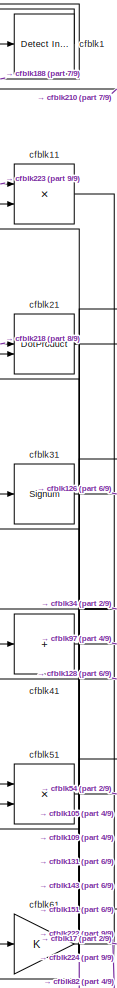
[diagram: root canvas - part 1/9, top left region]
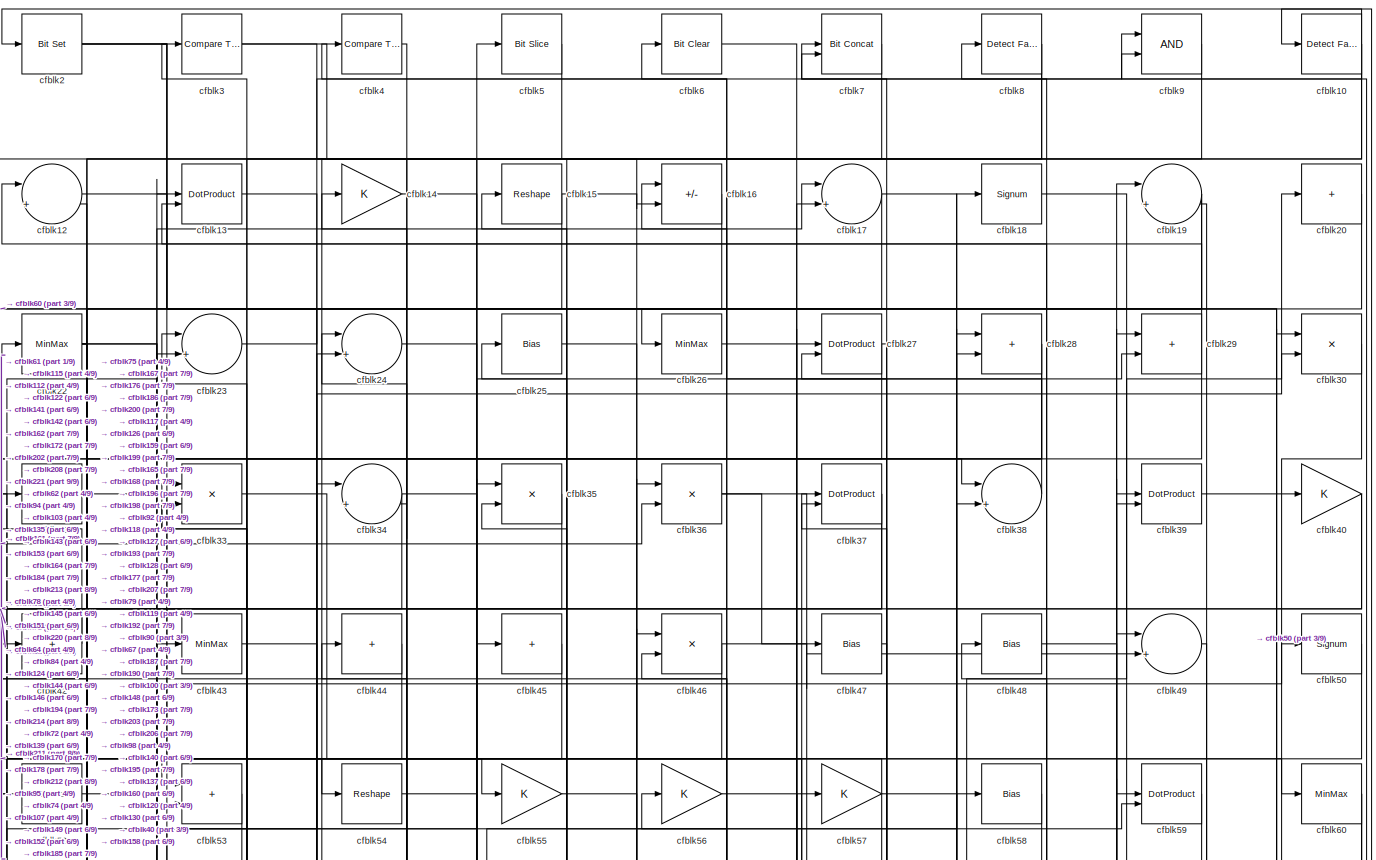
[diagram: root canvas - part 2/9, full width, top band]
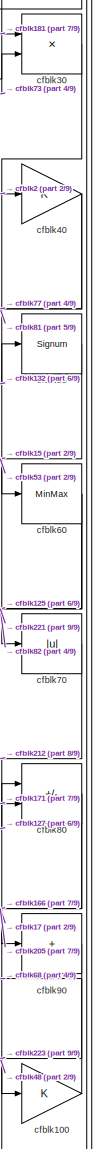
[diagram: root canvas - part 3/9, top right region]
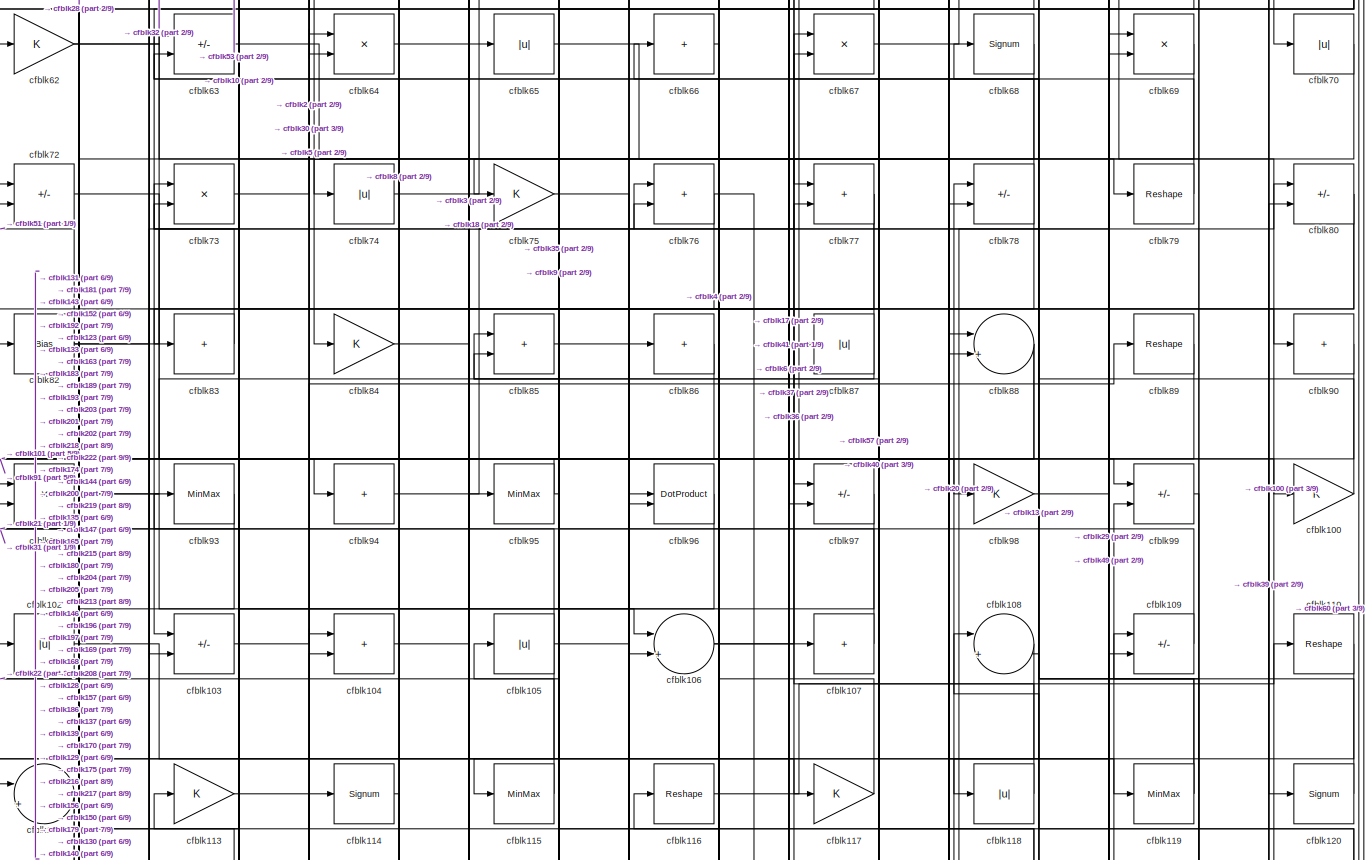
[diagram: root canvas - part 4/9, full width, middle band]
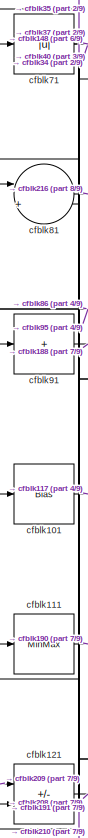
[diagram: root canvas - part 5/9, middle left region]
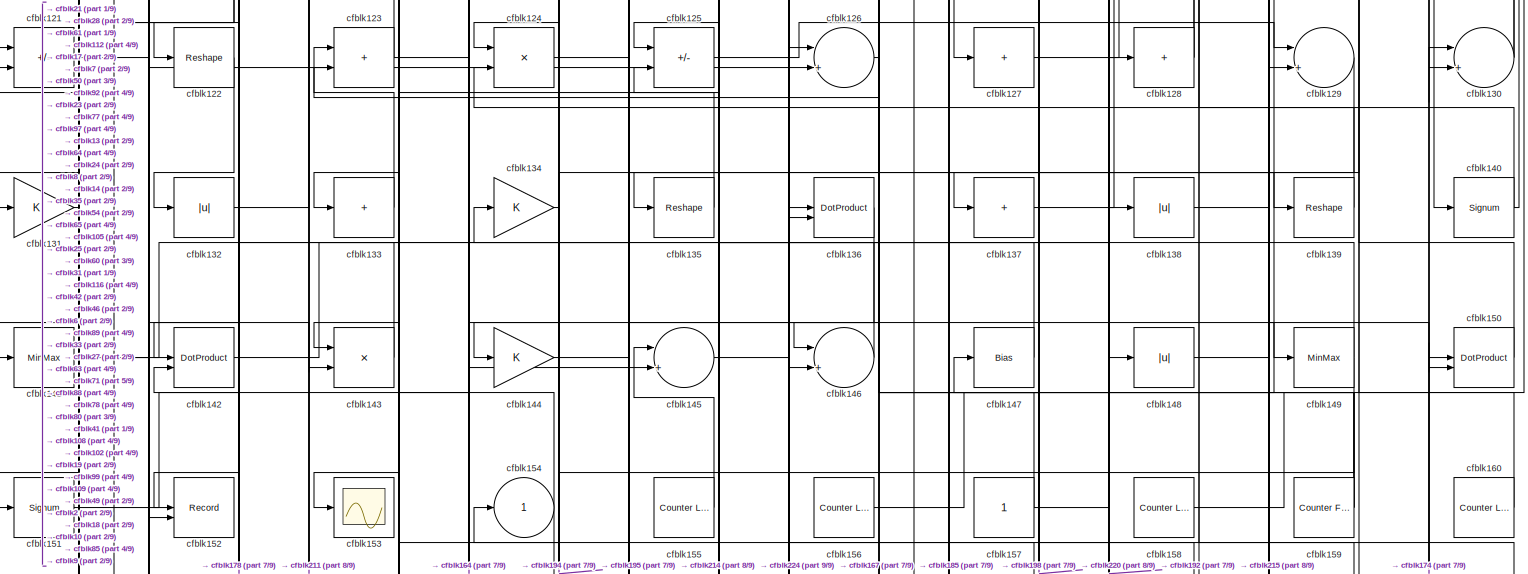
[diagram: root canvas - part 6/9, full width, middle band]
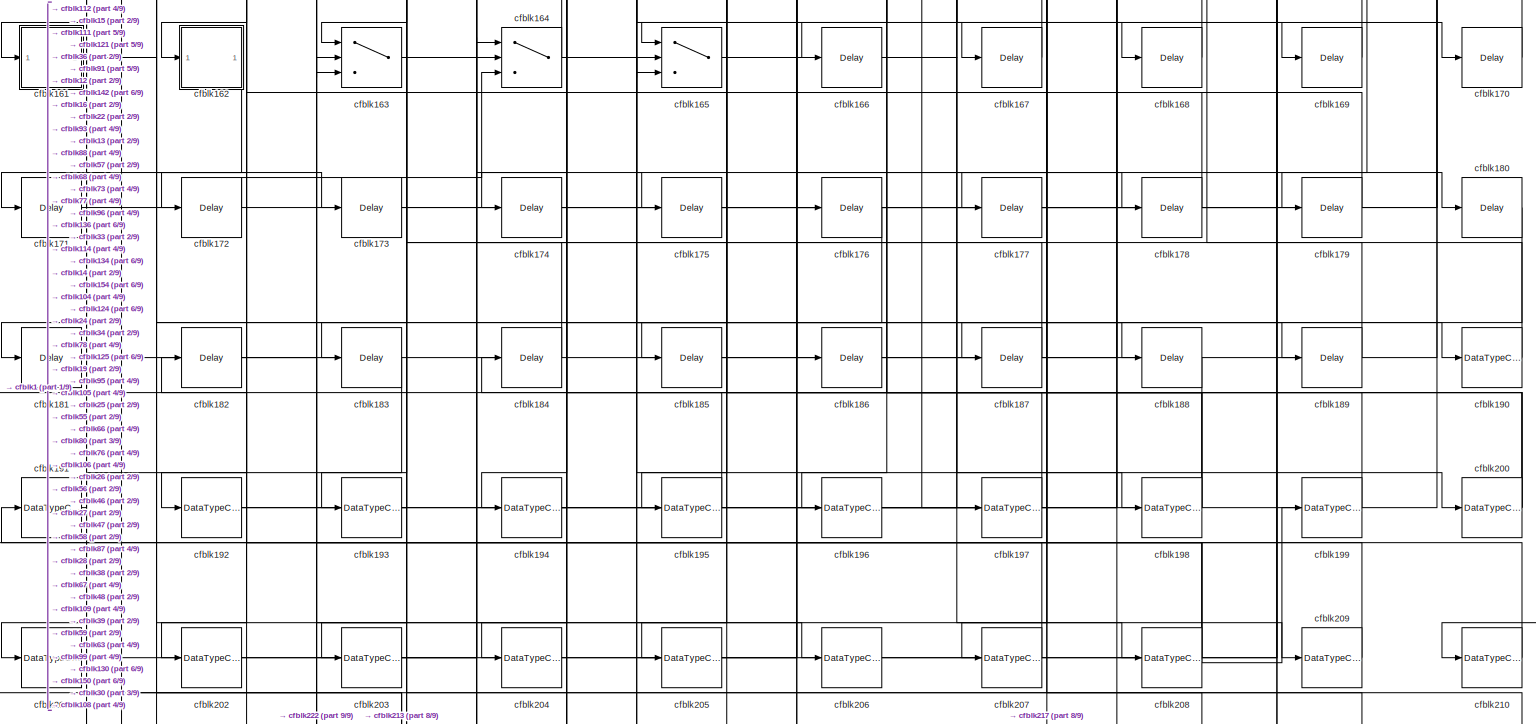
[diagram: root canvas - part 7/9, full width, bottom band]
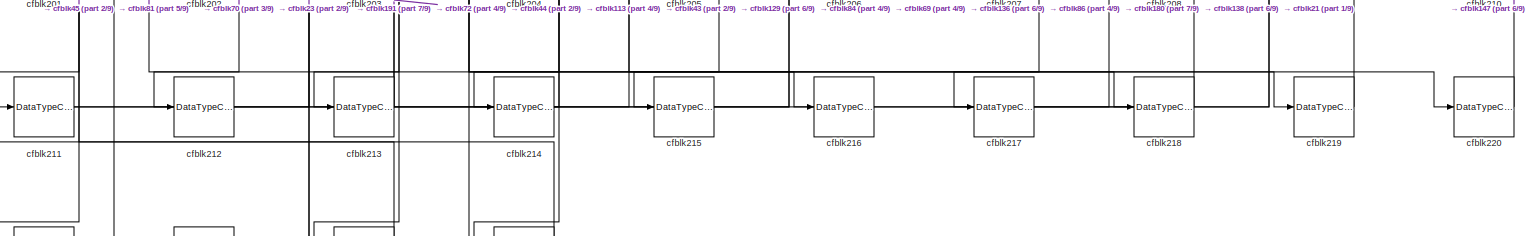
[diagram: root canvas - part 8/9, full width, bottom band]
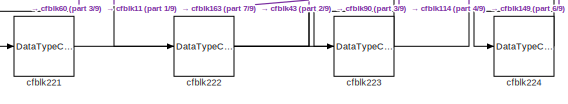
[diagram: root canvas - part 9/9, bottom left region]
MODEL slx_41062d90a717
KIND model
CONFIG AbsTol = auto
CONFIG EnableMultiTasking = off
CONFIG FixedStep = auto
CONFIG MaxStep = auto
CONFIG MinStep = auto
CONFIG RelTol = 1e-3
CONFIG SampleTimeConstraint = Unconstrained
CONFIG SolverName = VariableStepAuto
CONFIG StartTime = 0.0
CONFIG StopTime = 10.0
BLOCK [Reference] cfblk1  REF=simulink/Logic and Bit
Operations/Detect
Increase
  LibrarySourceBlock = hdlsllib/Logic and Bit\nOperations/Detect\nIncrease
  SourceBlock = simulink/Logic and Bit\nOperations/Detect\nIncrease
  SourceType = Detect Increase
BLOCK [Reference] cfblk10  REF=hdlsllib/Logic and Bit
Operations/Detect Fall
Nonpositive
  SourceBlock = hdlsllib/Logic and Bit\nOperations/Detect Fall\nNonpositive
  SourceType = Detect Fall Nonpositive
BLOCK [Gain] cfblk100
BLOCK [Bias] cfblk101
  Bias = 0.0
  SaturateOnIntegerOverflow = off
BLOCK [Abs] cfblk102
  SaturateOnIntegerOverflow = off
BLOCK [Sum] cfblk103
  IconShape = rectangular
  Inputs = +-
BLOCK [Sum] cfblk104
  IconShape = rectangular
BLOCK [Abs] cfblk105
  SaturateOnIntegerOverflow = off
BLOCK [Sum] cfblk106
  Inputs = |++
BLOCK [Sum] cfblk107
  IconShape = rectangular
  Inputs = +
BLOCK [Sum] cfblk108
  Inputs = |++
BLOCK [Sum] cfblk109
  IconShape = rectangular
  Inputs = +-
BLOCK [Product] cfblk11
  Inputs = */
  RndMeth = Zero
  SaturateOnIntegerOverflow = on
BLOCK [Reshape] cfblk110
BLOCK [MinMax] cfblk111
BLOCK [Sum] cfblk112
  Inputs = |++
BLOCK [Gain] cfblk113
BLOCK [Signum] cfblk114
BLOCK [MinMax] cfblk115
BLOCK [Reshape] cfblk116
BLOCK [Gain] cfblk117
BLOCK [Abs] cfblk118
  SaturateOnIntegerOverflow = off
BLOCK [MinMax] cfblk119
BLOCK [Sum] cfblk12
  Inputs = |++
BLOCK [Signum] cfblk120
BLOCK [Sum] cfblk121
  IconShape = rectangular
  Inputs = +-
BLOCK [Reshape] cfblk122
BLOCK [Sum] cfblk123
  IconShape = rectangular
BLOCK [Product] cfblk124
  Inputs = */
  RndMeth = Zero
  SaturateOnIntegerOverflow = on
BLOCK [Sum] cfblk125
  IconShape = rectangular
  Inputs = +-
BLOCK [Sum] cfblk126
  Inputs = |++
BLOCK [Sum] cfblk127
  IconShape = rectangular
  Inputs = +
BLOCK [Sum] cfblk128
  IconShape = rectangular
  Inputs = +
BLOCK [Sum] cfblk129
  Inputs = |++
BLOCK [DotProduct] cfblk13
  OutDataTypeStr = Inherit: Inherit via internal rule
BLOCK [Sum] cfblk130
  Inputs = |++
BLOCK [Gain] cfblk131
BLOCK [Abs] cfblk132
  SaturateOnIntegerOverflow = off
BLOCK [Sum] cfblk133
  IconShape = rectangular
  Inputs = +
BLOCK [Gain] cfblk134
BLOCK [Reshape] cfblk135
BLOCK [DotProduct] cfblk136
  OutDataTypeStr = Inherit: Inherit via internal rule
BLOCK [Sum] cfblk137
  IconShape = rectangular
  Inputs = +
BLOCK [Abs] cfblk138
  SaturateOnIntegerOverflow = off
BLOCK [Reshape] cfblk139
BLOCK [Gain] cfblk14
BLOCK [Signum] cfblk140
BLOCK [MinMax] cfblk141
BLOCK [DotProduct] cfblk142
  OutDataTypeStr = Inherit: Inherit via internal rule
BLOCK [Product] cfblk143
  Inputs = */
  RndMeth = Zero
  SaturateOnIntegerOverflow = on
BLOCK [Gain] cfblk144
BLOCK [Sum] cfblk145
  Inputs = |++
BLOCK [Sum] cfblk146
  Inputs = |++
BLOCK [Bias] cfblk147
  Bias = 0.0
  SaturateOnIntegerOverflow = off
BLOCK [Abs] cfblk148
  SaturateOnIntegerOverflow = off
BLOCK [MinMax] cfblk149
BLOCK [Reshape] cfblk15
BLOCK [DotProduct] cfblk150
  OutDataTypeStr = Inherit: Inherit via internal rule
BLOCK [Signum] cfblk151
BLOCK [Record] cfblk152
  CompatibilityTag = XY
  FileSettingsInternal = {"entries":[{"content":{"excelSettings":{"content":{},"type":"Streamout.ExcelSettings"}},"type":"Streamout.FileSettingStorage","uuid":""}],"packageUris":["http:\/\/schema.mathworks.com\/mf0\/streamout_blocks\/R2020a"],"version":"1.0"}
  Layout = [1 1]
  SignalsInternal = {"entries":[{"content":{"signals":[{"content":{"blockPath":[],"dimensions":[1],"domain":"","lineColor":"#a2142f","plots":[1],"port":1,"signalID":3551,"signalName":"XY Graph:1"},"type":"RecordBlkView.Signal","uuid":""},{"content":{"blockPath":[],"dimensions":[1],"domain":"","lineColor":"#139fff","plots":[1],"port":2,"signalID":3554,"signalName":"XY Graph:2"},"type":"RecordBlkView.Signal","uuid":""}...<+146ch>
  VisualizationBindings = {"xyplotplugin":{"info":[{"series":[{"bindingParametersList":[{"parameter":"X-Axis","signalID":3551,"signalName":"XY Graph:1"},{"parameter":"Y-Axis","signalID":3554,"signalName":"XY Graph:2"}],"seriesID":5096}],"subplotID":1}]}}
  st = -1
BLOCK [Scope] cfblk153
  Floating = off
  NumInputPorts = 1
  ScopeSpecificationString = Simulink.scopes.TimeScopeBlockCfg('CurrentConfiguration', extmgr.ConfigurationSet(extmgr.Configuration('Core','General UI',true),extmgr.Configuration('Core','Source UI',true),extmgr.Configuration('Sources','WiredSimulink',true,'DataLoggingVariableName','ScopeData2','DataLoggingSaveFormat','Array','DataLoggingLimitDataPoints',true,'DataLoggingDecimation','1'),extmgr.Configuration('Visuals','Time Do...<+868ch>
BLOCK [Outport] cfblk154
  VectorParamsAs1DForOutWhenUnconnected = off
BLOCK [Reference] cfblk155  REF=hdlsllib/Sources/Counter
Limited
  SourceBlock = hdlsllib/Sources/Counter\nLimited
  SourceType = Counter Limited
BLOCK [Reference] cfblk156  REF=hdlsllib/Sources/Counter
Limited
  SourceBlock = hdlsllib/Sources/Counter\nLimited
  SourceType = Counter Limited
BLOCK [Constant] cfblk157
  SampleTime = -1
BLOCK [Reference] cfblk158  REF=hdlsllib/Sources/Counter
Limited
  SourceBlock = hdlsllib/Sources/Counter\nLimited
  SourceType = Counter Limited
BLOCK [Reference] cfblk159  REF=hdlsllib/Sources/Counter
Free-Running
  SourceBlock = hdlsllib/Sources/Counter\nFree-Running
  SourceType = Counter Free-Running
BLOCK [Sum] cfblk16
  IconShape = rectangular
  Inputs = +-
BLOCK [Reference] cfblk160  REF=hdlsllib/Sources/Counter
Limited
  SourceBlock = hdlsllib/Sources/Counter\nLimited
  SourceType = Counter Limited
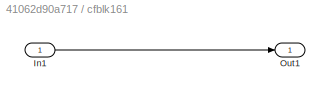
BLOCK [SubSystem] cfblk161
  LibrarySourceBlock = hdlsllib/Ports &\nSubsystems/Subsystem
BLOCK [Inport] cfblk161/In1
BLOCK [Outport] cfblk161/Out1
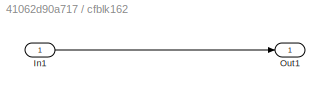
BLOCK [SubSystem] cfblk162
  LibrarySourceBlock = hdlsllib/Ports &\nSubsystems/Subsystem
BLOCK [Inport] cfblk162/In1
BLOCK [Outport] cfblk162/Out1
BLOCK [Switch] cfblk163
  InputSameDT = off
  SaturateOnIntegerOverflow = off
BLOCK [Switch] cfblk164
  InputSameDT = off
  SaturateOnIntegerOverflow = off
BLOCK [Switch] cfblk165
  InputSameDT = off
  SaturateOnIntegerOverflow = off
BLOCK [Delay] cfblk166
  InputPortMap = u0
  SampleTime = 1
BLOCK [Delay] cfblk167
  InputPortMap = u0
  SampleTime = 1
BLOCK [Delay] cfblk168
  InputPortMap = u0
  SampleTime = 1
BLOCK [Delay] cfblk169
  InputPortMap = u0
  SampleTime = 1
BLOCK [Sum] cfblk17
  Inputs = |++
BLOCK [Delay] cfblk170
  InputPortMap = u0
  SampleTime = 1
BLOCK [Delay] cfblk171
  InputPortMap = u0
  SampleTime = 1
BLOCK [Delay] cfblk172
  InputPortMap = u0
  SampleTime = 1
BLOCK [Delay] cfblk173
  InputPortMap = u0
  SampleTime = 1
BLOCK [Delay] cfblk174
  InputPortMap = u0
  SampleTime = 1
BLOCK [Delay] cfblk175
  InputPortMap = u0
  SampleTime = 1
BLOCK [Delay] cfblk176
  InputPortMap = u0
  SampleTime = 1
BLOCK [Delay] cfblk177
  InputPortMap = u0
  SampleTime = 1
BLOCK [Delay] cfblk178
  InputPortMap = u0
  SampleTime = 1
BLOCK [Delay] cfblk179
  InputPortMap = u0
  SampleTime = 1
BLOCK [Signum] cfblk18
BLOCK [Delay] cfblk180
  InputPortMap = u0
  SampleTime = 1
BLOCK [Delay] cfblk181
  InputPortMap = u0
  SampleTime = 1
BLOCK [Delay] cfblk182
  InputPortMap = u0
  SampleTime = 1
BLOCK [Delay] cfblk183
  InputPortMap = u0
  SampleTime = 1
BLOCK [Delay] cfblk184
  InputPortMap = u0
  SampleTime = 1
BLOCK [Delay] cfblk185
  InputPortMap = u0
  SampleTime = 1
BLOCK [Delay] cfblk186
  InputPortMap = u0
  SampleTime = 1
BLOCK [Delay] cfblk187
  InputPortMap = u0
  SampleTime = 1
BLOCK [Delay] cfblk188
  InputPortMap = u0
  SampleTime = 1
BLOCK [Delay] cfblk189
  InputPortMap = u0
  SampleTime = 1
BLOCK [Sum] cfblk19
  Inputs = |++
BLOCK [DataTypeConversion] cfblk190
  OutDataTypeStr = uint8
  RndMeth = Floor
  SaturateOnIntegerOverflow = off
BLOCK [DataTypeConversion] cfblk191
  OutDataTypeStr = uint8
  RndMeth = Floor
  SaturateOnIntegerOverflow = off
BLOCK [DataTypeConversion] cfblk192
  RndMeth = Floor
  SaturateOnIntegerOverflow = off
BLOCK [DataTypeConversion] cfblk193
  OutDataTypeStr = uint8
  RndMeth = Floor
  SaturateOnIntegerOverflow = off
BLOCK [DataTypeConversion] cfblk194
  RndMeth = Floor
  SaturateOnIntegerOverflow = off
BLOCK [DataTypeConversion] cfblk195
  OutDataTypeStr = uint8
  RndMeth = Floor
  SaturateOnIntegerOverflow = off
BLOCK [DataTypeConversion] cfblk196
  OutDataTypeStr = uint8
  RndMeth = Floor
  SaturateOnIntegerOverflow = off
BLOCK [DataTypeConversion] cfblk197
  OutDataTypeStr = uint8
  RndMeth = Floor
  SaturateOnIntegerOverflow = off
BLOCK [DataTypeConversion] cfblk198
  RndMeth = Floor
  SaturateOnIntegerOverflow = off
BLOCK [DataTypeConversion] cfblk199
  OutDataTypeStr = uint8
  RndMeth = Floor
  SaturateOnIntegerOverflow = off
BLOCK [Reference] cfblk2  REF=simulink/Logic and Bit
Operations/Bit Set
  LibrarySourceBlock = hdlsllib/Logic and Bit\nOperations/Bit Set
  SourceBlock = simulink/Logic and Bit\nOperations/Bit Set
  SourceType = Bit Set
BLOCK [Sum] cfblk20
  IconShape = rectangular
  Inputs = +
BLOCK [DataTypeConversion] cfblk200
  RndMeth = Floor
  SaturateOnIntegerOverflow = off
BLOCK [DataTypeConversion] cfblk201
  OutDataTypeStr = uint8
  RndMeth = Floor
  SaturateOnIntegerOverflow = off
BLOCK [DataTypeConversion] cfblk202
  OutDataTypeStr = uint8
  RndMeth = Floor
  SaturateOnIntegerOverflow = off
BLOCK [DataTypeConversion] cfblk203
  OutDataTypeStr = uint8
  RndMeth = Floor
  SaturateOnIntegerOverflow = off
BLOCK [DataTypeConversion] cfblk204
  OutDataTypeStr = uint8
  RndMeth = Floor
  SaturateOnIntegerOverflow = off
BLOCK [DataTypeConversion] cfblk205
  OutDataTypeStr = uint8
  RndMeth = Floor
  SaturateOnIntegerOverflow = off
BLOCK [DataTypeConversion] cfblk206
  OutDataTypeStr = uint8
  RndMeth = Floor
  SaturateOnIntegerOverflow = off
BLOCK [DataTypeConversion] cfblk207
  OutDataTypeStr = uint8
  RndMeth = Floor
  SaturateOnIntegerOverflow = off
BLOCK [DataTypeConversion] cfblk208
  RndMeth = Floor
  SaturateOnIntegerOverflow = off
BLOCK [DataTypeConversion] cfblk209
  OutDataTypeStr = uint8
  RndMeth = Floor
  SaturateOnIntegerOverflow = off
BLOCK [DotProduct] cfblk21
  OutDataTypeStr = Inherit: Inherit via internal rule
BLOCK [DataTypeConversion] cfblk210
  OutDataTypeStr = uint8
  RndMeth = Floor
  SaturateOnIntegerOverflow = off
BLOCK [DataTypeConversion] cfblk211
  RndMeth = Floor
  SaturateOnIntegerOverflow = off
BLOCK [DataTypeConversion] cfblk212
  OutDataTypeStr = uint8
  RndMeth = Floor
  SaturateOnIntegerOverflow = off
BLOCK [DataTypeConversion] cfblk213
  RndMeth = Floor
  SaturateOnIntegerOverflow = off
BLOCK [DataTypeConversion] cfblk214
  OutDataTypeStr = uint8
  RndMeth = Floor
  SaturateOnIntegerOverflow = off
BLOCK [DataTypeConversion] cfblk215
  OutDataTypeStr = uint8
  RndMeth = Floor
  SaturateOnIntegerOverflow = off
BLOCK [DataTypeConversion] cfblk216
  OutDataTypeStr = uint8
  RndMeth = Floor
  SaturateOnIntegerOverflow = off
BLOCK [DataTypeConversion] cfblk217
  OutDataTypeStr = uint8
  RndMeth = Floor
  SaturateOnIntegerOverflow = off
BLOCK [DataTypeConversion] cfblk218
  OutDataTypeStr = uint8
  RndMeth = Floor
  SaturateOnIntegerOverflow = off
BLOCK [DataTypeConversion] cfblk219
  OutDataTypeStr = uint8
  RndMeth = Floor
  SaturateOnIntegerOverflow = off
BLOCK [MinMax] cfblk22
BLOCK [DataTypeConversion] cfblk220
  OutDataTypeStr = uint8
  RndMeth = Floor
  SaturateOnIntegerOverflow = off
BLOCK [DataTypeConversion] cfblk221
  OutDataTypeStr = uint8
  RndMeth = Floor
  SaturateOnIntegerOverflow = off
BLOCK [DataTypeConversion] cfblk222
  RndMeth = Floor
  SaturateOnIntegerOverflow = off
BLOCK [DataTypeConversion] cfblk223
  OutDataTypeStr = uint8
  RndMeth = Floor
  SaturateOnIntegerOverflow = off
BLOCK [DataTypeConversion] cfblk224
  OutDataTypeStr = uint8
  RndMeth = Floor
  SaturateOnIntegerOverflow = off
BLOCK [Sum] cfblk23
  Inputs = |++
BLOCK [Sum] cfblk24
  Inputs = |++
BLOCK [Bias] cfblk25
  Bias = 0.0
  SaturateOnIntegerOverflow = off
BLOCK [MinMax] cfblk26
BLOCK [DotProduct] cfblk27
  OutDataTypeStr = Inherit: Inherit via internal rule
BLOCK [Sum] cfblk28
  IconShape = rectangular
BLOCK [Sum] cfblk29
  IconShape = rectangular
BLOCK [Reference] cfblk3  REF=hdlsllib/Logic and Bit
Operations/Compare
To Constant
  SourceBlock = hdlsllib/Logic and Bit\nOperations/Compare\nTo Constant
  SourceType = Compare To Constant
BLOCK [Product] cfblk30
  Inputs = */
  RndMeth = Zero
  SaturateOnIntegerOverflow = on
BLOCK [Signum] cfblk31
BLOCK [Reshape] cfblk32
BLOCK [Product] cfblk33
  Inputs = */
  RndMeth = Zero
  SaturateOnIntegerOverflow = on
BLOCK [Sum] cfblk34
  Inputs = |++
BLOCK [Product] cfblk35
  Inputs = */
  RndMeth = Zero
  SaturateOnIntegerOverflow = on
BLOCK [Product] cfblk36
  Inputs = */
  RndMeth = Zero
  SaturateOnIntegerOverflow = on
BLOCK [DotProduct] cfblk37
  OutDataTypeStr = Inherit: Inherit via internal rule
BLOCK [Sum] cfblk38
  Inputs = |++
BLOCK [DotProduct] cfblk39
  OutDataTypeStr = Inherit: Inherit via internal rule
BLOCK [Reference] cfblk4  REF=hdlsllib/Logic and Bit
Operations/Compare
To Constant
  SourceBlock = hdlsllib/Logic and Bit\nOperations/Compare\nTo Constant
  SourceType = Compare To Constant
BLOCK [Gain] cfblk40
BLOCK [Sum] cfblk41
  IconShape = rectangular
  Inputs = +
BLOCK [Sum] cfblk42
  IconShape = rectangular
  Inputs = +
BLOCK [MinMax] cfblk43
BLOCK [Sum] cfblk44
  IconShape = rectangular
  Inputs = +
BLOCK [Sum] cfblk45
  IconShape = rectangular
  Inputs = +
BLOCK [Product] cfblk46
  Inputs = */
  RndMeth = Zero
  SaturateOnIntegerOverflow = on
BLOCK [Bias] cfblk47
  Bias = 0.0
  SaturateOnIntegerOverflow = off
BLOCK [Bias] cfblk48
  Bias = 0.0
  SaturateOnIntegerOverflow = off
BLOCK [Sum] cfblk49
  Inputs = |++
BLOCK [Reference] cfblk5  REF=hdlsllib/Logic and Bit
Operations/Bit Slice
  SourceBlock = hdlsllib/Logic and Bit\nOperations/Bit Slice
  SourceType = Bit Slice
BLOCK [Signum] cfblk50
BLOCK [Product] cfblk51
  Inputs = */
  RndMeth = Zero
  SaturateOnIntegerOverflow = on
BLOCK [MinMax] cfblk52
BLOCK [Sum] cfblk53
  IconShape = rectangular
BLOCK [Reshape] cfblk54
BLOCK [Gain] cfblk55
BLOCK [Gain] cfblk56
BLOCK [Gain] cfblk57
BLOCK [Bias] cfblk58
  Bias = 0.0
  SaturateOnIntegerOverflow = off
BLOCK [DotProduct] cfblk59
  OutDataTypeStr = Inherit: Inherit via internal rule
BLOCK [Reference] cfblk6  REF=simulink/Logic and Bit
Operations/Bit Clear
  LibrarySourceBlock = hdlsllib/Logic and Bit\nOperations/Bit Clear
  SourceBlock = simulink/Logic and Bit\nOperations/Bit Clear
  SourceType = Bit Clear
BLOCK [MinMax] cfblk60
BLOCK [Gain] cfblk61
BLOCK [Gain] cfblk62
BLOCK [Sum] cfblk63
  IconShape = rectangular
  Inputs = +-
BLOCK [Product] cfblk64
  Inputs = */
  RndMeth = Zero
  SaturateOnIntegerOverflow = on
BLOCK [Abs] cfblk65
  SaturateOnIntegerOverflow = off
BLOCK [Sum] cfblk66
  IconShape = rectangular
  Inputs = +
BLOCK [Product] cfblk67
  Inputs = */
  RndMeth = Zero
  SaturateOnIntegerOverflow = on
BLOCK [Signum] cfblk68
BLOCK [Product] cfblk69
  Inputs = */
  RndMeth = Zero
  SaturateOnIntegerOverflow = on
BLOCK [Reference] cfblk7  REF=hdlsllib/Logic and Bit
Operations/Bit Concat
  SourceBlock = hdlsllib/Logic and Bit\nOperations/Bit Concat
  SourceType = Bit Concat
BLOCK [Abs] cfblk70
  SaturateOnIntegerOverflow = off
BLOCK [Abs] cfblk71
  SaturateOnIntegerOverflow = off
BLOCK [Sum] cfblk72
  IconShape = rectangular
  Inputs = +-
BLOCK [Product] cfblk73
  Inputs = */
  RndMeth = Zero
  SaturateOnIntegerOverflow = on
BLOCK [Abs] cfblk74
  SaturateOnIntegerOverflow = off
BLOCK [Gain] cfblk75
BLOCK [Sum] cfblk76
  IconShape = rectangular
BLOCK [Sum] cfblk77
  IconShape = rectangular
BLOCK [Sum] cfblk78
  IconShape = rectangular
  Inputs = +-
BLOCK [Reshape] cfblk79
BLOCK [Reference] cfblk8  REF=hdlsllib/Logic and Bit
Operations/Detect Fall
Negative
  SourceBlock = hdlsllib/Logic and Bit\nOperations/Detect Fall\nNegative
  SourceType = Detect Fall Negative
BLOCK [Sum] cfblk80
  IconShape = rectangular
  Inputs = +-
BLOCK [Sum] cfblk81
  Inputs = |++
BLOCK [Bias] cfblk82
  Bias = 0.0
  SaturateOnIntegerOverflow = off
BLOCK [Sum] cfblk83
  IconShape = rectangular
  Inputs = +
BLOCK [Gain] cfblk84
BLOCK [Sum] cfblk85
  IconShape = rectangular
BLOCK [Sum] cfblk86
  IconShape = rectangular
  Inputs = +
BLOCK [Abs] cfblk87
  SaturateOnIntegerOverflow = off
BLOCK [Sum] cfblk88
  Inputs = |++
BLOCK [Reshape] cfblk89
BLOCK [Logic] cfblk9
  AllPortsSameDT = off
  OutDataTypeStr = boolean
BLOCK [Sum] cfblk90
  IconShape = rectangular
  Inputs = +
BLOCK [Sum] cfblk91
  IconShape = rectangular
  Inputs = +
BLOCK [Product] cfblk92
  Inputs = */
  RndMeth = Zero
  SaturateOnIntegerOverflow = on
BLOCK [MinMax] cfblk93
BLOCK [Sum] cfblk94
  IconShape = rectangular
  Inputs = +
BLOCK [MinMax] cfblk95
BLOCK [DotProduct] cfblk96
  OutDataTypeStr = Inherit: Inherit via internal rule
BLOCK [Sum] cfblk97
  IconShape = rectangular
  Inputs = +-
BLOCK [Gain] cfblk98
BLOCK [Sum] cfblk99
  IconShape = rectangular
  Inputs = +-
LINE cfblk100:1 -> cfblk68:1
LINE cfblk101:1 -> cfblk117:1
LINE cfblk102:1 -> cfblk129:2
LINE cfblk103:1 -> cfblk89:1
LINE cfblk104:1 -> cfblk200:1
NET cfblk105:1 -> cfblk112:2, cfblk180:1, cfblk21:2
NET cfblk106:1 -> cfblk169:1, cfblk67:1
LINE cfblk107:1 -> cfblk35:2
LINE cfblk108:1 -> cfblk118:1
LINE cfblk109:1 -> cfblk31:1
NET cfblk10:1 -> cfblk112:1, cfblk153:1, cfblk2:1, cfblk7:2
LINE cfblk110:1 -> cfblk115:1
LINE cfblk111:1 -> cfblk190:1
NET cfblk112:1 -> cfblk131:1, cfblk181:1
LINE cfblk113:1 -> cfblk218:1
LINE cfblk114:1 -> cfblk174:1
LINE cfblk115:1 -> cfblk22:1
LINE cfblk116:1 -> cfblk110:1
LINE cfblk117:1 -> cfblk4:1
LINE cfblk118:1 -> cfblk37:1
NET cfblk119:1 -> cfblk13:2, cfblk76:2
LINE cfblk11:1 -> cfblk222:1
LINE cfblk120:1 -> cfblk63:1
LINE cfblk121:1 -> cfblk208:1
LINE cfblk122:1 -> cfblk132:1
NET cfblk123:1 -> cfblk64:1, cfblk92:2
LINE cfblk124:1 -> cfblk167:1
LINE cfblk125:1 -> cfblk129:1
LINE cfblk126:1 -> cfblk46:2
LINE cfblk127:1 -> cfblk80:1
NET cfblk128:1 -> cfblk41:1, cfblk7:1
LINE cfblk129:1 -> cfblk214:1
LINE cfblk12:1 -> cfblk55:1
NET cfblk130:1 -> cfblk85:1, cfblk8:1
LINE cfblk131:1 -> cfblk61:1
LINE cfblk132:1 -> cfblk50:1
LINE cfblk133:1 -> cfblk123:1
LINE cfblk134:1 -> cfblk194:1
LINE cfblk135:1 -> cfblk23:1
LINE cfblk136:1 -> cfblk164:2
LINE cfblk137:1 -> cfblk78:1
LINE cfblk138:1 -> cfblk150:2
LINE cfblk139:1 -> cfblk108:2
LINE cfblk13:1 -> cfblk145:2
NET cfblk140:1 -> cfblk116:1, cfblk9:1
NET cfblk141:1 -> cfblk126:2, cfblk35:1
LINE cfblk142:1 -> cfblk28:1
LINE cfblk143:1 -> cfblk102:1
LINE cfblk144:1 -> cfblk65:1
LINE cfblk145:1 -> cfblk149:1
LINE cfblk146:1 -> cfblk24:1
LINE cfblk147:1 -> cfblk105:1
LINE cfblk148:1 -> cfblk19:1
NET cfblk149:1 -> cfblk224:1, cfblk25:1
LINE cfblk14:1 -> cfblk139:1
LINE cfblk150:1 -> cfblk109:1
LINE cfblk151:1 -> cfblk24:2
LINE cfblk155:1 -> cfblk145:1
LINE cfblk156:1 -> cfblk99:2
NET cfblk157:1 -> cfblk124:2, cfblk88:1
LINE cfblk158:1 -> cfblk10:1
NET cfblk159:1 -> cfblk123:2, cfblk42:1, cfblk6:1
NET cfblk15:1 -> cfblk161:1, cfblk60:1
LINE cfblk160:1 -> cfblk19:2
LINE cfblk161/In1:1 -> cfblk161/Out1:1
NET cfblk161:1 -> cfblk173:1, cfblk36:2
LINE cfblk162/In1:1 -> cfblk162/Out1:1
LINE cfblk162:1 -> cfblk171:1
LINE cfblk163:1 -> cfblk175:1
NET cfblk164:1 -> cfblk189:1, cfblk33:1
LINE cfblk165:1 -> cfblk57:1
LINE cfblk166:1 -> cfblk209:1
LINE cfblk167:1 -> cfblk46:1
LINE cfblk168:1 -> cfblk67:2
LINE cfblk169:1 -> cfblk63:2
LINE cfblk16:1 -> cfblk172:1
LINE cfblk170:1 -> cfblk108:1
LINE cfblk171:1 -> cfblk80:2
LINE cfblk172:1 -> cfblk164:3
LINE cfblk173:1 -> cfblk59:1
LINE cfblk174:1 -> cfblk150:1
LINE cfblk175:1 -> cfblk109:2
LINE cfblk176:1 -> cfblk204:1
LINE cfblk177:1 -> cfblk28:2
LINE cfblk178:1 -> cfblk142:2
LINE cfblk179:1 -> cfblk165:2
NET cfblk17:1 -> cfblk122:1, cfblk90:1
LINE cfblk180:1 -> cfblk217:1
LINE cfblk181:1 -> cfblk30:1
LINE cfblk182:1 -> cfblk206:1
LINE cfblk183:1 -> cfblk201:1
LINE cfblk184:1 -> cfblk33:2
LINE cfblk185:1 -> cfblk136:2
LINE cfblk186:1 -> cfblk78:2
LINE cfblk187:1 -> cfblk164:1
LINE cfblk188:1 -> cfblk1:1
LINE cfblk189:1 -> cfblk73:2
LINE cfblk18:1 -> cfblk140:1
LINE cfblk190:1 -> cfblk48:1
LINE cfblk191:1 -> cfblk111:1
NET cfblk192:1 -> cfblk130:1, cfblk58:1
LINE cfblk193:1 -> cfblk93:1
NET cfblk194:1 -> cfblk14:1, cfblk38:2
LINE cfblk195:1 -> cfblk134:1
LINE cfblk196:1 -> cfblk27:1
LINE cfblk197:1 -> cfblk66:1
NET cfblk198:1 -> cfblk125:2, cfblk154:1, cfblk27:2
LINE cfblk199:1 -> cfblk56:1
NET cfblk19:1 -> cfblk152:2, cfblk185:1
LINE cfblk1:1 -> cfblk210:1
NET cfblk200:1 -> cfblk15:1, cfblk184:1, cfblk36:1
LINE cfblk201:1 -> cfblk104:1
LINE cfblk202:1 -> cfblk104:2
LINE cfblk203:1 -> cfblk39:2
LINE cfblk204:1 -> cfblk96:1
LINE cfblk205:1 -> cfblk96:2
LINE cfblk206:1 -> cfblk39:1
LINE cfblk207:1 -> cfblk182:1
NET cfblk208:1 -> cfblk12:2, cfblk13:1, cfblk199:1, cfblk87:1
LINE cfblk209:1 -> cfblk121:1
LINE cfblk20:1 -> cfblk26:1
LINE cfblk210:1 -> cfblk121:2
NET cfblk211:1 -> cfblk136:1, cfblk23:2
LINE cfblk212:1 -> cfblk45:1
NET cfblk213:1 -> cfblk191:1, cfblk72:1, cfblk86:1
LINE cfblk214:1 -> cfblk44:1
LINE cfblk215:1 -> cfblk138:1
LINE cfblk216:1 -> cfblk69:1
LINE cfblk217:1 -> cfblk69:2
LINE cfblk218:1 -> cfblk21:1
LINE cfblk219:1 -> cfblk113:1
NET cfblk21:1 -> cfblk143:2, cfblk151:1
LINE cfblk220:1 -> cfblk147:1
LINE cfblk221:1 -> cfblk43:1
NET cfblk222:1 -> cfblk114:1, cfblk163:2
LINE cfblk223:1 -> cfblk11:1
LINE cfblk224:1 -> cfblk11:2
NET cfblk22:1 -> cfblk162:1, cfblk202:1, cfblk38:1, cfblk53:2
LINE cfblk23:1 -> cfblk9:2
LINE cfblk24:1 -> cfblk170:1
LINE cfblk25:1 -> cfblk186:1
LINE cfblk26:1 -> cfblk168:1
NET cfblk27:1 -> cfblk143:1, cfblk207:1
NET cfblk28:1 -> cfblk141:1, cfblk62:1
NET cfblk29:1 -> cfblk12:1, cfblk92:1
NET cfblk2:1 -> cfblk130:2, cfblk40:1, cfblk64:2
LINE cfblk30:1 -> cfblk70:1
LINE cfblk31:1 -> cfblk126:1
LINE cfblk32:1 -> cfblk94:1
LINE cfblk33:1 -> cfblk127:1
NET cfblk34:1 -> cfblk178:1, cfblk51:1
LINE cfblk35:1 -> cfblk81:1
NET cfblk36:1 -> cfblk47:1, cfblk98:1
NET cfblk37:1 -> cfblk71:1, cfblk74:1
LINE cfblk38:1 -> cfblk16:1
LINE cfblk39:1 -> cfblk120:1
NET cfblk3:1 -> cfblk16:2, cfblk95:1
NET cfblk40:1 -> cfblk77:1, cfblk81:2
LINE cfblk41:1 -> cfblk97:2
LINE cfblk42:1 -> cfblk32:1
LINE cfblk43:1 -> cfblk220:1
LINE cfblk44:1 -> cfblk213:1
LINE cfblk45:1 -> cfblk211:1
NET cfblk46:1 -> cfblk124:1, cfblk49:2
LINE cfblk47:1 -> cfblk177:1
LINE cfblk48:1 -> cfblk100:1
LINE cfblk49:1 -> cfblk137:1
LINE cfblk4:1 -> cfblk34:2
LINE cfblk50:1 -> cfblk53:1
LINE cfblk51:1 -> cfblk54:1
LINE cfblk52:1 -> cfblk59:2
LINE cfblk53:1 -> cfblk103:1
LINE cfblk54:1 -> cfblk146:2
LINE cfblk55:1 -> cfblk176:1
LINE cfblk56:1 -> cfblk198:1
NET cfblk57:1 -> cfblk119:1, cfblk193:1, cfblk52:1
LINE cfblk58:1 -> cfblk187:1
LINE cfblk59:1 -> cfblk195:1
LINE cfblk5:1 -> cfblk84:1
NET cfblk60:1 -> cfblk125:1, cfblk221:1, cfblk82:1
LINE cfblk61:1 -> cfblk17:1
NET cfblk62:1 -> cfblk5:1, cfblk88:2
LINE cfblk63:1 -> cfblk128:1
LINE cfblk64:1 -> cfblk29:2
LINE cfblk65:1 -> cfblk79:1
LINE cfblk66:1 -> cfblk196:1
LINE cfblk67:1 -> cfblk20:1
LINE cfblk68:1 -> cfblk163:1
LINE cfblk69:1 -> cfblk215:1
LINE cfblk6:1 -> cfblk107:1
LINE cfblk70:1 -> cfblk212:1
NET cfblk71:1 -> cfblk148:1, cfblk34:1
LINE cfblk72:1 -> cfblk99:1
LINE cfblk73:1 -> cfblk30:2
LINE cfblk74:1 -> cfblk18:1
LINE cfblk75:1 -> cfblk106:2
NET cfblk76:1 -> cfblk103:2, cfblk197:1
NET cfblk77:1 -> cfblk152:1, cfblk183:1
NET cfblk78:1 -> cfblk165:3, cfblk3:1
LINE cfblk79:1 -> cfblk37:2
LINE cfblk7:1 -> cfblk142:1
NET cfblk80:1 -> cfblk166:1, cfblk205:1
LINE cfblk81:1 -> cfblk216:1
NET cfblk82:1 -> cfblk51:2, cfblk76:1, cfblk77:2
LINE cfblk83:1 -> cfblk73:1
LINE cfblk84:1 -> cfblk219:1
LINE cfblk85:1 -> cfblk97:1
LINE cfblk86:1 -> cfblk101:1
NET cfblk87:1 -> cfblk83:1, cfblk85:2
NET cfblk88:1 -> cfblk135:1, cfblk163:3
LINE cfblk89:1 -> cfblk146:1
NET cfblk8:1 -> cfblk144:1, cfblk72:2
LINE cfblk90:1 -> cfblk223:1
LINE cfblk91:1 -> cfblk188:1
NET cfblk92:1 -> cfblk106:1, cfblk17:2
LINE cfblk93:1 -> cfblk192:1
LINE cfblk94:1 -> cfblk49:1
NET cfblk95:1 -> cfblk165:1, cfblk91:1
LINE cfblk96:1 -> cfblk203:1
LINE cfblk97:1 -> cfblk133:1
LINE cfblk98:1 -> cfblk29:1
LINE cfblk99:1 -> cfblk179:1
LINE cfblk9:1 -> cfblk75:1
note: NET lines group one-source signal fan-out (src -> all destinations, sorted); 1:1 wires keep LINE
